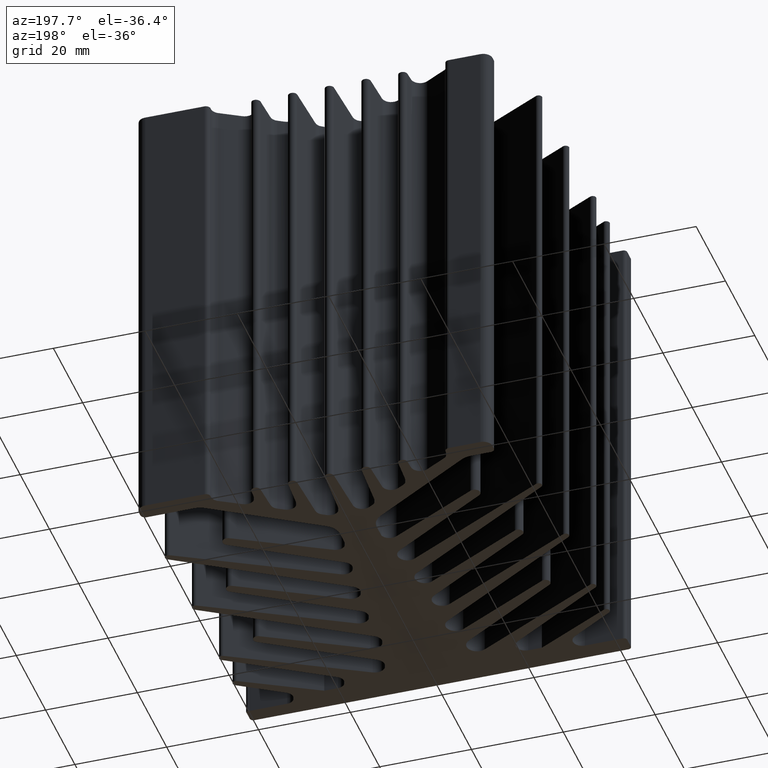
[diagram: clean part render]
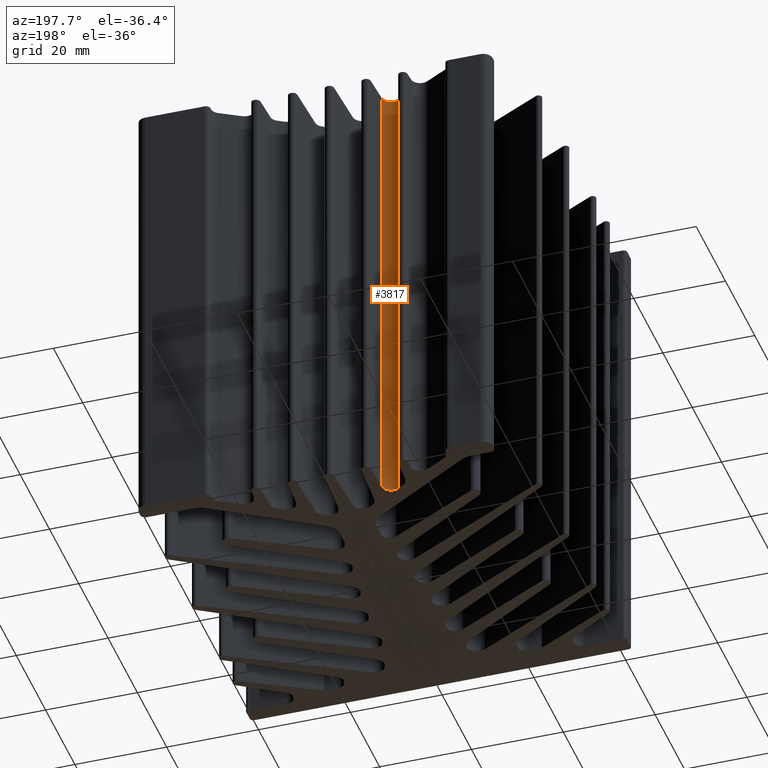
[diagram: same view with one face highlighted and labeled with its STEP entity id]
A machine part, auxiliary view. The second image highlights one B-rep face of the part: STEP entity #3817.
In plain terms, the highlighted cylindrical surface (edge-blend (fillet) strip) has radius 2 mm, axis along (-0, -0, -1).
Its self-contained STEP definition (entity closure, byte-faithful):
#43 = DIRECTION ( 'NONE',  ( -1.000000000000000000, 0.0000000000000000000, 0.0000000000000000000 ) ) ;
#129 = EDGE_LOOP ( 'NONE', ( #4570, #2983, #1355, #4049 ) ) ;
#376 = VERTEX_POINT ( 'NONE', #2651 ) ;
#439 = DIRECTION ( 'NONE',  ( -0.0000000000000000000, -0.0000000000000000000, -1.000000000000000000 ) ) ;
#513 = LINE ( 'NONE', #3349, #624 ) ;
#624 = VECTOR ( 'NONE', #1318, 1000.000000000000000 ) ;
#646 = CARTESIAN_POINT ( 'NONE',  ( -9.343958840967211188, 30.35842182854673865, 50.00000000000000000 ) ) ;
#675 = CARTESIAN_POINT ( 'NONE',  ( -11.34122137133717878, 30.46302768298493291, 50.00000000000000000 ) ) ;
#833 = DIRECTION ( 'NONE',  ( 1.000000000000000000, 0.0000000000000000000, 0.0000000000000000000 ) ) ;
#896 = CYLINDRICAL_SURFACE ( 'NONE', #1420, 2.000000000000647038 ) ;
#909 = AXIS2_PLACEMENT_3D ( 'NONE', #675, #3621, #4747 ) ;
#948 = DIRECTION ( 'NONE',  ( -0.0000000000000000000, -0.0000000000000000000, -1.000000000000000000 ) ) ;
#1215 = VERTEX_POINT ( 'NONE', #646 ) ;
#1318 = DIRECTION ( 'NONE',  ( -0.0000000000000000000, -0.0000000000000000000, -1.000000000000000000 ) ) ;
#1355 = ORIENTED_EDGE ( 'NONE', *, *, #1432, .F. ) ;
#1356 = LINE ( 'NONE', #1566, #4087 ) ;
#1420 = AXIS2_PLACEMENT_3D ( 'NONE', #3311, #3730, #43 ) ;
#1432 = EDGE_CURVE ( 'NONE', #1215, #1714, #3778, .T. ) ;
#1566 = CARTESIAN_POINT ( 'NONE',  ( -9.343958840967211188, 30.35842182854673865, 50.00000000000000000 ) ) ;
#1714 = VERTEX_POINT ( 'NONE', #4204 ) ;
#1780 = AXIS2_PLACEMENT_3D ( 'NONE', #2379, #439, #833 ) ;
#1860 = EDGE_CURVE ( 'NONE', #1714, #376, #513, .T. ) ;
#1990 = FACE_OUTER_BOUND ( 'NONE', #129, .T. ) ;
#2162 = CIRCLE ( 'NONE', #1780, 2.000000000000647038 ) ;
#2379 = CARTESIAN_POINT ( 'NONE',  ( -11.34122137133717878, 30.46302768298493291, -50.00000000000000000 ) ) ;
#2651 = CARTESIAN_POINT ( 'NONE',  ( -12.34122137133617336, 28.73097687541472922, -50.00000000000000000 ) ) ;
#2983 = ORIENTED_EDGE ( 'NONE', *, *, #1860, .F. ) ;
#3132 = EDGE_CURVE ( 'NONE', #4350, #376, #2162, .T. ) ;
#3311 = CARTESIAN_POINT ( 'NONE',  ( -11.34122137133717878, 30.46302768298493291, 50.00000000000000000 ) ) ;
#3349 = CARTESIAN_POINT ( 'NONE',  ( -12.34122137133617336, 28.73097687541472922, 50.00000000000000000 ) ) ;
#3502 = CARTESIAN_POINT ( 'NONE',  ( -9.343958840967211188, 30.35842182854673865, -50.00000000000000000 ) ) ;
#3621 = DIRECTION ( 'NONE',  ( -0.0000000000000000000, -0.0000000000000000000, -1.000000000000000000 ) ) ;
#3730 = DIRECTION ( 'NONE',  ( -0.0000000000000000000, -0.0000000000000000000, -1.000000000000000000 ) ) ;
#3778 = CIRCLE ( 'NONE', #909, 2.000000000000647038 ) ;
#3817 = ADVANCED_FACE ( 'NONE', ( #1990 ), #896, .F. ) ;
#4049 = ORIENTED_EDGE ( 'NONE', *, *, #4640, .T. ) ;
#4087 = VECTOR ( 'NONE', #948, 1000.000000000000000 ) ;
#4204 = CARTESIAN_POINT ( 'NONE',  ( -12.34122137133617336, 28.73097687541472922, 50.00000000000000000 ) ) ;
#4350 = VERTEX_POINT ( 'NONE', #3502 ) ;
#4570 = ORIENTED_EDGE ( 'NONE', *, *, #3132, .T. ) ;
#4640 = EDGE_CURVE ( 'NONE', #1215, #4350, #1356, .T. ) ;
#4747 = DIRECTION ( 'NONE',  ( 1.000000000000000000, 0.0000000000000000000, 0.0000000000000000000 ) ) ;